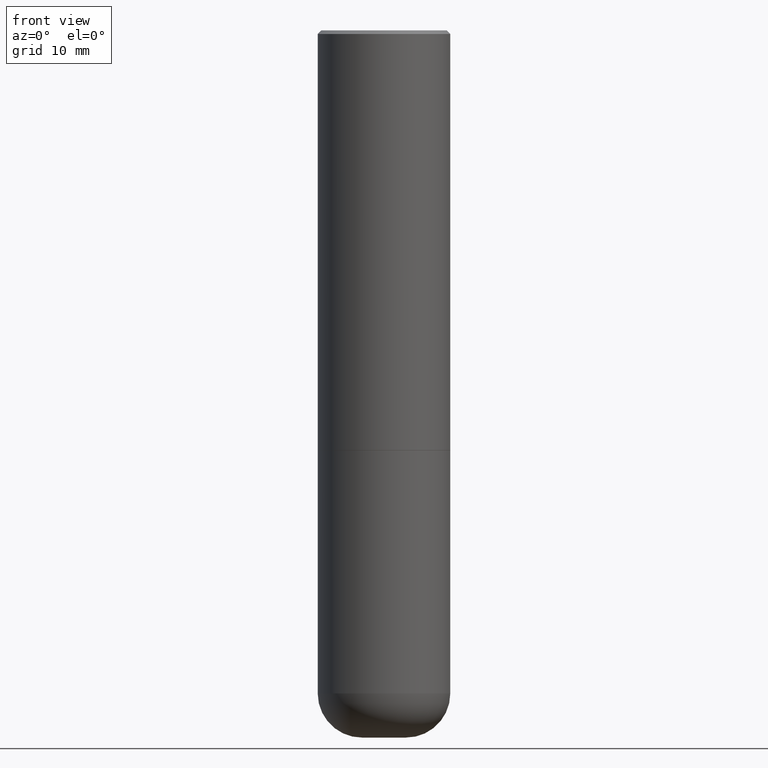
[diagram: clean part render]
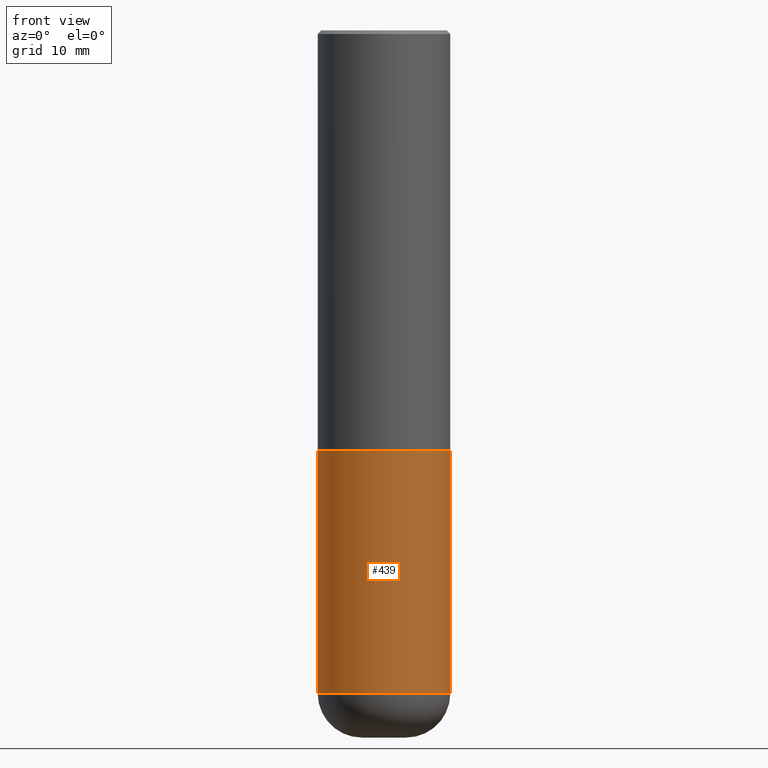
[diagram: same view with one face highlighted and labeled with its STEP entity id]
A machine part, front view. The second image highlights one B-rep face of the part: STEP entity #439.
In plain terms, the highlighted cylindrical surface (partial cylindrical patch) has radius 9.525 mm, axis along (-0, 0, 1).
Its self-contained STEP definition (entity closure, byte-faithful):
#1 = DIRECTION ( 'NONE',  ( 1.000000000000000000, -6.982962677686266711E-15, 4.876176775795935793E-29 ) ) ;
#21 = AXIS2_PLACEMENT_3D ( 'NONE', #255, #33, #135 ) ;
#33 = DIRECTION ( 'NONE',  ( -2.445468806185136597E-29, 3.491481338843145583E-15, 1.000000000000000000 ) ) ;
#40 = VERTEX_POINT ( 'NONE', #445 ) ;
#42 = DIRECTION ( 'NONE',  ( -2.445468806185136597E-29, 3.491481338843145583E-15, 1.000000000000000000 ) ) ;
#45 = AXIS2_PLACEMENT_3D ( 'NONE', #474, #42, #195 ) ;
#69 = AXIS2_PLACEMENT_3D ( 'NONE', #79, #84, #1 ) ;
#79 = CARTESIAN_POINT ( 'NONE',  ( 0.000000000000000000, 0.000000000000000000, 0.000000000000000000 ) ) ;
#84 = DIRECTION ( 'NONE',  ( -2.445468806185136597E-29, 3.491481338843145583E-15, 1.000000000000000000 ) ) ;
#107 = VECTOR ( 'NONE', #452, 39.37007874015748143 ) ;
#112 = ORIENTED_EDGE ( 'NONE', *, *, #154, .F. ) ;
#113 = EDGE_CURVE ( 'NONE', #234, #414, #136, .T. ) ;
#116 = ORIENTED_EDGE ( 'NONE', *, *, #235, .T. ) ;
#126 = CARTESIAN_POINT ( 'NONE',  ( 0.3749999999999999445, -2.618611004132349622E-15, 1.828566290923475642E-29 ) ) ;
#132 = CARTESIAN_POINT ( 'NONE',  ( 0.3749999999999999445, -1.571169926102186224E-14, -3.750009519233956645 ) ) ;
#135 = DIRECTION ( 'NONE',  ( 1.000000000000000000, -6.982962677686266711E-15, 0.000000000000000000 ) ) ;
#136 = CIRCLE ( 'NONE', #21, 0.3750000000000000555 ) ;
#154 = EDGE_CURVE ( 'NONE', #40, #234, #447, .T. ) ;
#177 = EDGE_LOOP ( 'NONE', ( #112, #387, #116, #335 ) ) ;
#195 = DIRECTION ( 'NONE',  ( 1.000000000000000000, -6.982962677686263555E-15, 0.000000000000000000 ) ) ;
#234 = VERTEX_POINT ( 'NONE', #402 ) ;
#235 = EDGE_CURVE ( 'NONE', #375, #414, #397, .T. ) ;
#238 = CARTESIAN_POINT ( 'NONE',  ( 0.3750000000000000555, -1.091087918388482013E-14, -2.375000000000000000 ) ) ;
#255 = CARTESIAN_POINT ( 'NONE',  ( 5.807988414689699417E-29, -8.292268179752470118E-15, -2.375000000000000000 ) ) ;
#265 = CIRCLE ( 'NONE', #45, 0.3749999999999999445 ) ;
#271 = FACE_OUTER_BOUND ( 'NONE', #177, .T. ) ;
#282 = VECTOR ( 'NONE', #367, 39.37007874015748143 ) ;
#335 = ORIENTED_EDGE ( 'NONE', *, *, #113, .F. ) ;
#367 = DIRECTION ( 'NONE',  ( -2.445468806185136877E-29, 3.491481338843145188E-15, 1.000000000000000000 ) ) ;
#375 = VERTEX_POINT ( 'NONE', #132 ) ;
#387 = ORIENTED_EDGE ( 'NONE', *, *, #448, .T. ) ;
#397 = LINE ( 'NONE', #126, #282 ) ;
#402 = CARTESIAN_POINT ( 'NONE',  ( -0.3750000000000000555, -8.028142959220617840E-15, -2.375000000000000000 ) ) ;
#408 = CARTESIAN_POINT ( 'NONE',  ( -0.3749999999999999445, 2.664535259100375303E-15, -1.844600658845589318E-29 ) ) ;
#414 = VERTEX_POINT ( 'NONE', #238 ) ;
#420 = CYLINDRICAL_SURFACE ( 'NONE', #69, 0.3749999999999999445 ) ;
#439 = ADVANCED_FACE ( 'NONE', ( #271 ), #420, .T. ) ;
#445 = CARTESIAN_POINT ( 'NONE',  ( -0.3749999999999999445, -8.028142959220617840E-15, -3.750009519233956645 ) ) ;
#447 = LINE ( 'NONE', #408, #107 ) ;
#448 = EDGE_CURVE ( 'NONE', #40, #375, #265, .T. ) ;
#452 = DIRECTION ( 'NONE',  ( -2.445468806185136877E-29, 3.491481338843145188E-15, 1.000000000000000000 ) ) ;
#474 = CARTESIAN_POINT ( 'NONE',  ( 9.170531302183962062E-29, -1.309308825688951538E-14, -3.750009519233956645 ) ) ;